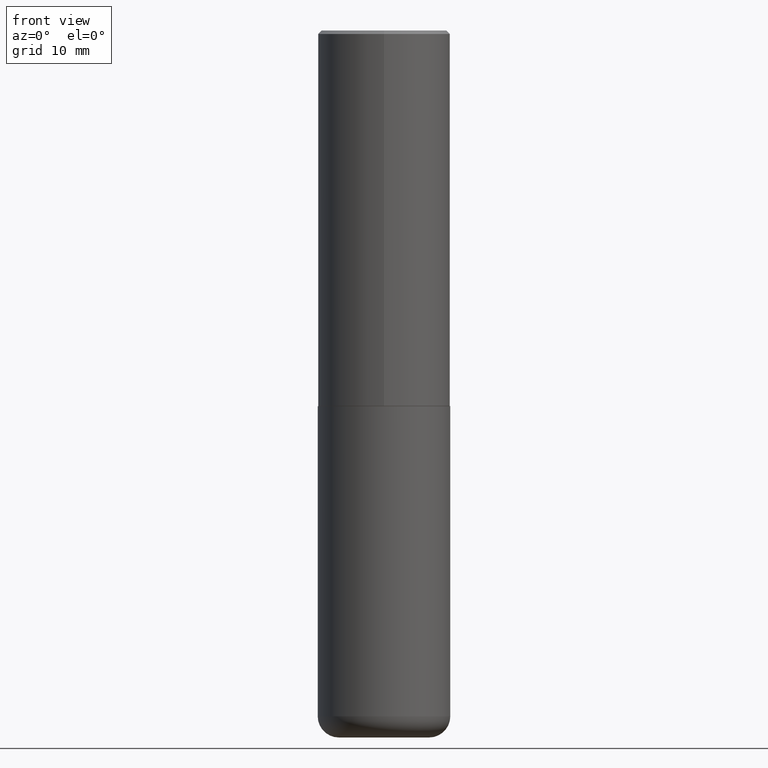
[diagram: clean part render]
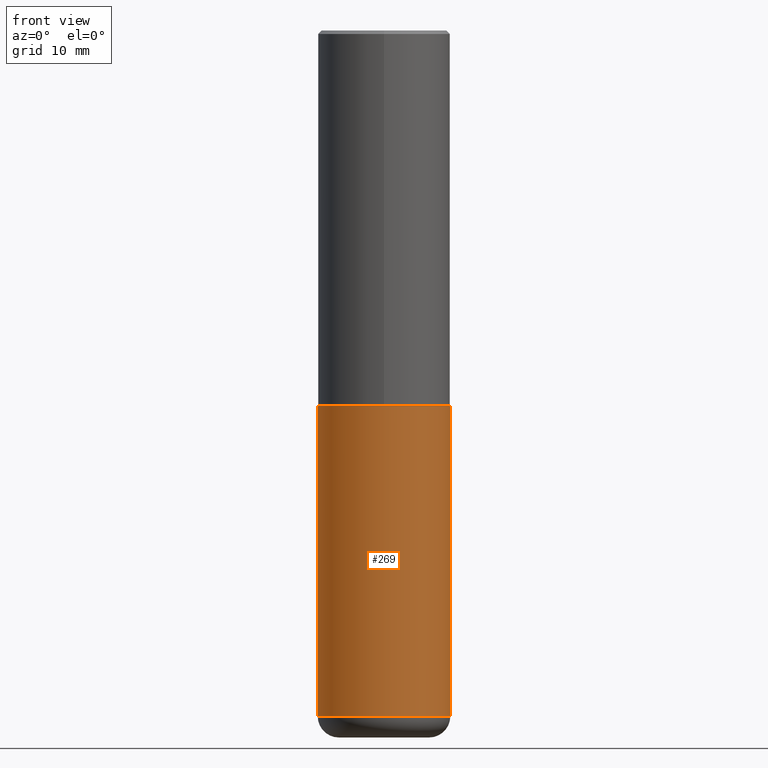
[diagram: same view with one face highlighted and labeled with its STEP entity id]
A machine part, front view. The second image highlights one B-rep face of the part: STEP entity #269.
In plain terms, the highlighted cylindrical surface (partial cylindrical patch) has radius 9.525 mm, axis along (-0, 0, 1).
Its self-contained STEP definition (entity closure, byte-faithful):
#3 = DIRECTION ( 'NONE',  ( -2.445468806185136877E-29, 3.491481338843145188E-15, 1.000000000000000000 ) ) ;
#7 = ORIENTED_EDGE ( 'NONE', *, *, #187, .F. ) ;
#17 = DIRECTION ( 'NONE',  ( -2.445468806185136597E-29, 3.491481338843145583E-15, 1.000000000000000000 ) ) ;
#40 = VERTEX_POINT ( 'NONE', #327 ) ;
#50 = FACE_OUTER_BOUND ( 'NONE', #78, .T. ) ;
#64 = VECTOR ( 'NONE', #3, 39.37007874015748143 ) ;
#67 = DIRECTION ( 'NONE',  ( -2.445468806185136877E-29, 3.491481338843145188E-15, 1.000000000000000000 ) ) ;
#78 = EDGE_LOOP ( 'NONE', ( #7, #261, #111, #116 ) ) ;
#91 = CARTESIAN_POINT ( 'NONE',  ( 0.3750000000000001110, -1.616555859884375729E-14, -3.880000000000000338 ) ) ;
#106 = DIRECTION ( 'NONE',  ( -2.445468806185136597E-29, 3.491481338843145583E-15, 1.000000000000000000 ) ) ;
#111 = ORIENTED_EDGE ( 'NONE', *, *, #320, .T. ) ;
#116 = ORIENTED_EDGE ( 'NONE', *, *, #159, .F. ) ;
#117 = CARTESIAN_POINT ( 'NONE',  ( -0.3750000000000000555, 2.664535259100376091E-15, -1.844600658845589598E-29 ) ) ;
#126 = CARTESIAN_POINT ( 'NONE',  ( 0.3750000000000000555, -2.618611004132350016E-15, 1.828566290923476203E-29 ) ) ;
#127 = CARTESIAN_POINT ( 'NONE',  ( -0.3750000000000001110, -1.088241233561102684E-14, -3.880000000000000338 ) ) ;
#134 = DIRECTION ( 'NONE',  ( -2.445468806185136597E-29, 3.491481338843145583E-15, 1.000000000000000000 ) ) ;
#144 = AXIS2_PLACEMENT_3D ( 'NONE', #236, #134, #372 ) ;
#150 = AXIS2_PLACEMENT_3D ( 'NONE', #404, #17, #227 ) ;
#159 = EDGE_CURVE ( 'NONE', #217, #40, #200, .T. ) ;
#169 = DIRECTION ( 'NONE',  ( 1.000000000000000000, -6.982962677686266711E-15, 0.000000000000000000 ) ) ;
#187 = EDGE_CURVE ( 'NONE', #386, #217, #385, .T. ) ;
#200 = CIRCLE ( 'NONE', #144, 0.3750000000000000555 ) ;
#215 = CARTESIAN_POINT ( 'NONE',  ( 9.488418967998330085E-29, -1.354694759471140570E-14, -3.880000000000000338 ) ) ;
#217 = VERTEX_POINT ( 'NONE', #303 ) ;
#227 = DIRECTION ( 'NONE',  ( 1.000000000000000000, -6.982962677686265922E-15, 4.876176775795935793E-29 ) ) ;
#236 = CARTESIAN_POINT ( 'NONE',  ( 5.196621213143415268E-29, -7.419397845041683624E-15, -2.125000000000000000 ) ) ;
#254 = EDGE_CURVE ( 'NONE', #386, #393, #280, .T. ) ;
#261 = ORIENTED_EDGE ( 'NONE', *, *, #254, .T. ) ;
#269 = ADVANCED_FACE ( 'NONE', ( #50 ), #334, .T. ) ;
#279 = AXIS2_PLACEMENT_3D ( 'NONE', #215, #106, #169 ) ;
#280 = CIRCLE ( 'NONE', #279, 0.3750000000000000555 ) ;
#284 = LINE ( 'NONE', #126, #64 ) ;
#303 = CARTESIAN_POINT ( 'NONE',  ( -0.3750000000000000555, -7.818637460776168963E-15, -2.125000000000000000 ) ) ;
#320 = EDGE_CURVE ( 'NONE', #393, #40, #284, .T. ) ;
#327 = CARTESIAN_POINT ( 'NONE',  ( 0.3750000000000000555, -1.003800884917403364E-14, -2.125000000000000000 ) ) ;
#334 = CYLINDRICAL_SURFACE ( 'NONE', #150, 0.3750000000000000555 ) ;
#353 = VECTOR ( 'NONE', #67, 39.37007874015748143 ) ;
#372 = DIRECTION ( 'NONE',  ( 1.000000000000000000, -6.982962677686266711E-15, 0.000000000000000000 ) ) ;
#385 = LINE ( 'NONE', #117, #353 ) ;
#386 = VERTEX_POINT ( 'NONE', #127 ) ;
#393 = VERTEX_POINT ( 'NONE', #91 ) ;
#404 = CARTESIAN_POINT ( 'NONE',  ( 0.000000000000000000, 0.000000000000000000, 0.000000000000000000 ) ) ;